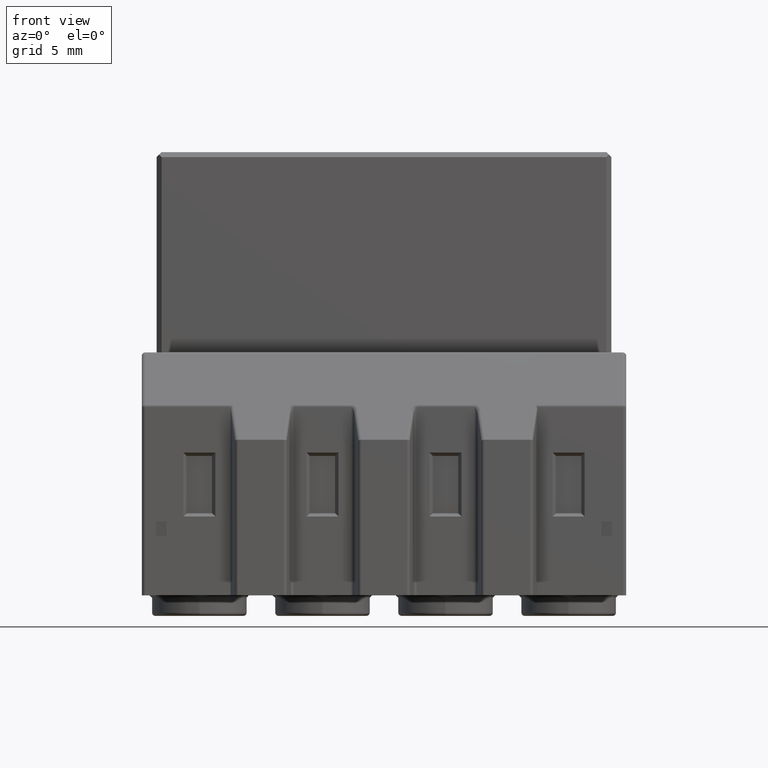
[diagram: clean part render]
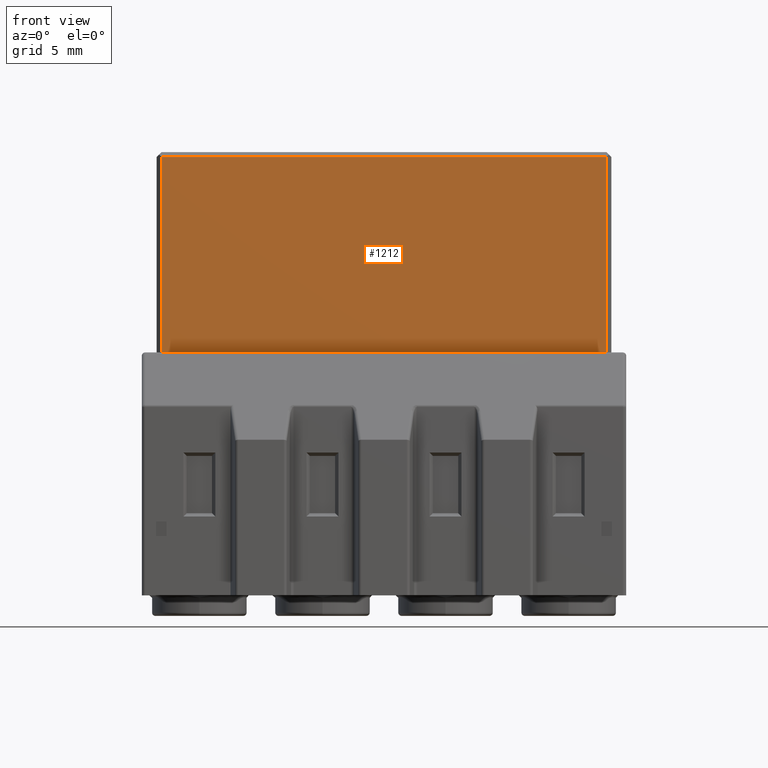
[diagram: same view with one face highlighted and labeled with its STEP entity id]
A machine part, front view. The second image highlights one B-rep face of the part: STEP entity #1212.
In plain terms, the highlighted planar face has unit normal (0, -1, 0).
Its self-contained STEP definition (entity closure, byte-faithful):
#546=FACE_OUTER_BOUND('',#2441,.T.);
#1212=ADVANCED_FACE('',(#546),#1844,.T.);
#1844=PLANE('',#13228);
#2441=EDGE_LOOP('',(#7018,#7019,#7020,#7021));
#3434=LINE('',#18540,#4941);
#3504=LINE('',#18826,#5011);
#3505=LINE('',#18828,#5012);
#3506=LINE('',#18830,#5013);
#4941=VECTOR('',#14812,1.);
#5011=VECTOR('',#15030,1.);
#5012=VECTOR('',#15033,1.);
#5013=VECTOR('',#15034,1.);
#7018=ORIENTED_EDGE('',*,*,#11505,.F.);
#7019=ORIENTED_EDGE('',*,*,#11395,.T.);
#7020=ORIENTED_EDGE('',*,*,#11504,.T.);
#7021=ORIENTED_EDGE('',*,*,#11506,.F.);
#10068=VERTEX_POINT('',#18539);
#10069=VERTEX_POINT('',#18541);
#10130=VERTEX_POINT('',#18825);
#10131=VERTEX_POINT('',#18829);
#11395=EDGE_CURVE('',#10069,#10068,#3434,.T.);
#11504=EDGE_CURVE('',#10068,#10130,#3504,.T.);
#11505=EDGE_CURVE('',#10069,#10131,#3505,.T.);
#11506=EDGE_CURVE('',#10131,#10130,#3506,.T.);
#13228=AXIS2_PLACEMENT_3D('',#18831,#15035,#15036);
#14812=DIRECTION('',(-1.,0.,0.));
#15030=DIRECTION('',(0.,0.,-1.));
#15033=DIRECTION('',(0.,0.,-1.));
#15034=DIRECTION('',(-1.,0.,0.));
#15035=DIRECTION('',(0.,-1.,0.));
#15036=DIRECTION('',(0.,0.,1.));
#18539=CARTESIAN_POINT('',(-24.8,-2.845,-0.3));
#18540=CARTESIAN_POINT('',(-19.55,-2.845,-0.3));
#18541=CARTESIAN_POINT('',(2.3,-2.845,-0.3));
#18825=CARTESIAN_POINT('',(-24.8,-2.845,-12.2));
#18826=CARTESIAN_POINT('',(-24.8,-2.845,-0.3));
#18828=CARTESIAN_POINT('',(2.3,-2.845,-0.3));
#18829=CARTESIAN_POINT('',(2.3,-2.845,-12.2));
#18830=CARTESIAN_POINT('',(-19.55,-2.845,-12.2));
#18831=CARTESIAN_POINT('',(-41.,-2.845,0.));